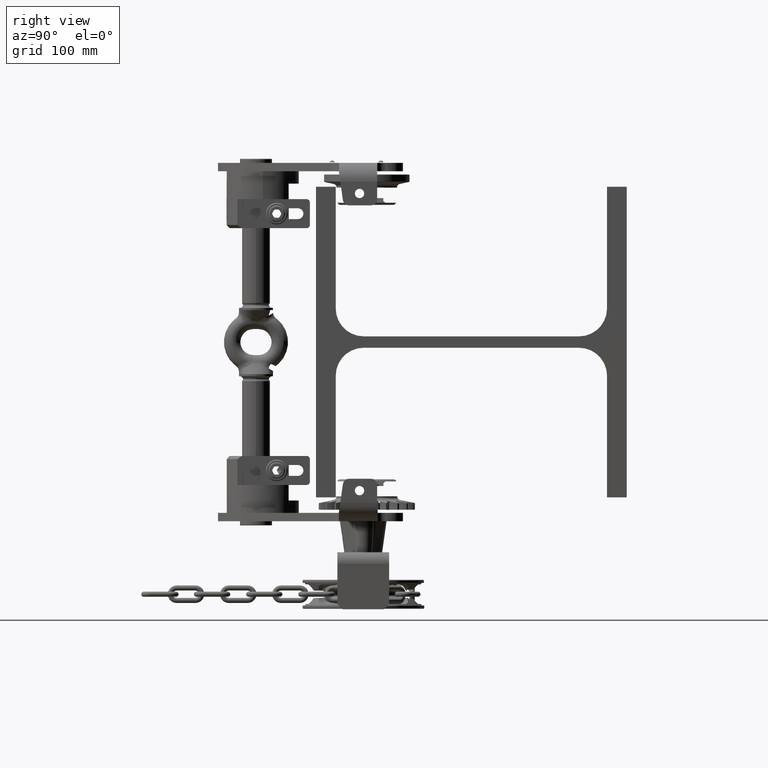
[diagram: clean part render]
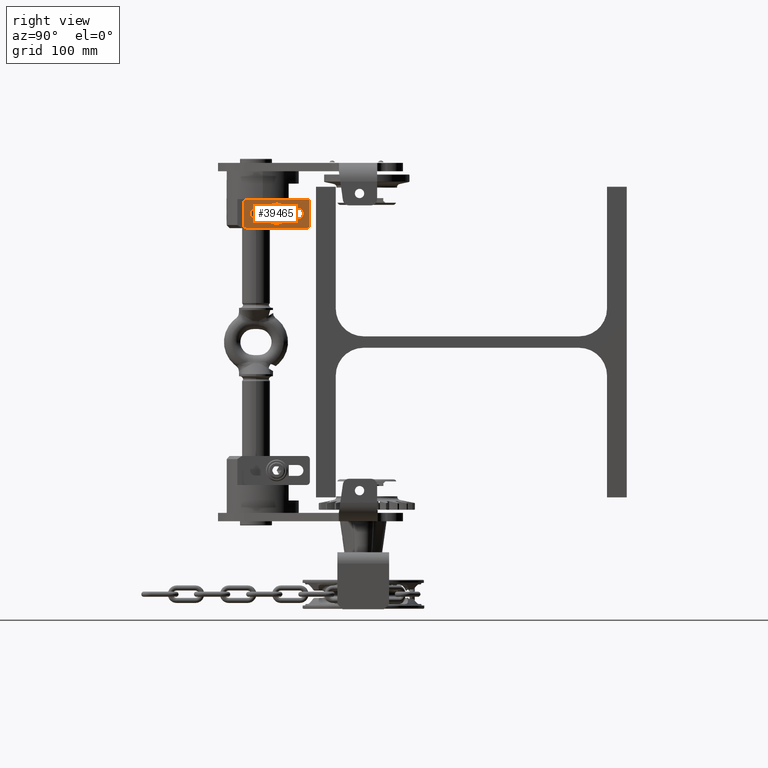
[diagram: same view with one face highlighted and labeled with its STEP entity id]
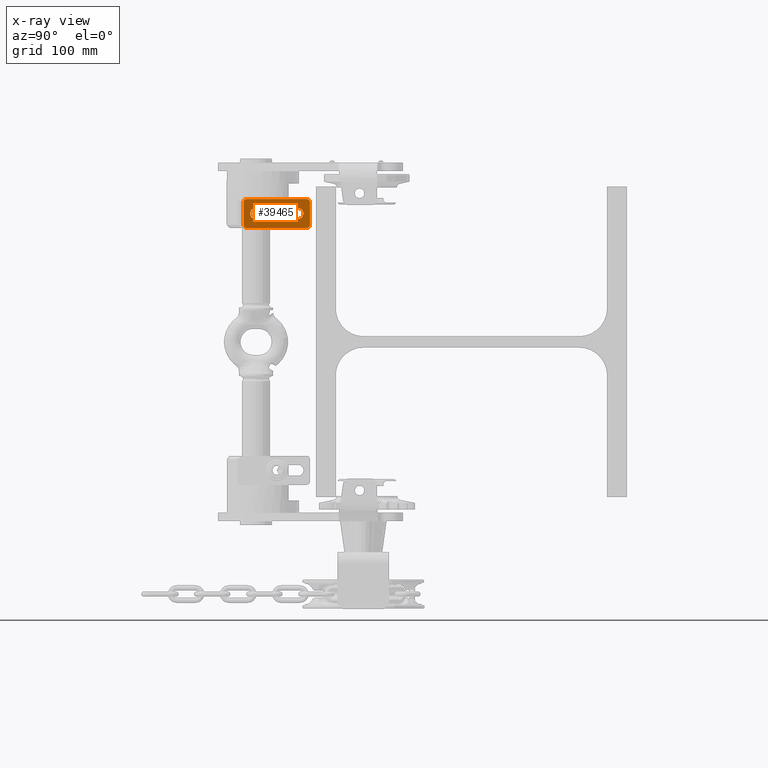
[diagram: x-ray of the same camera — body ghosted, the highlighted face saturated]
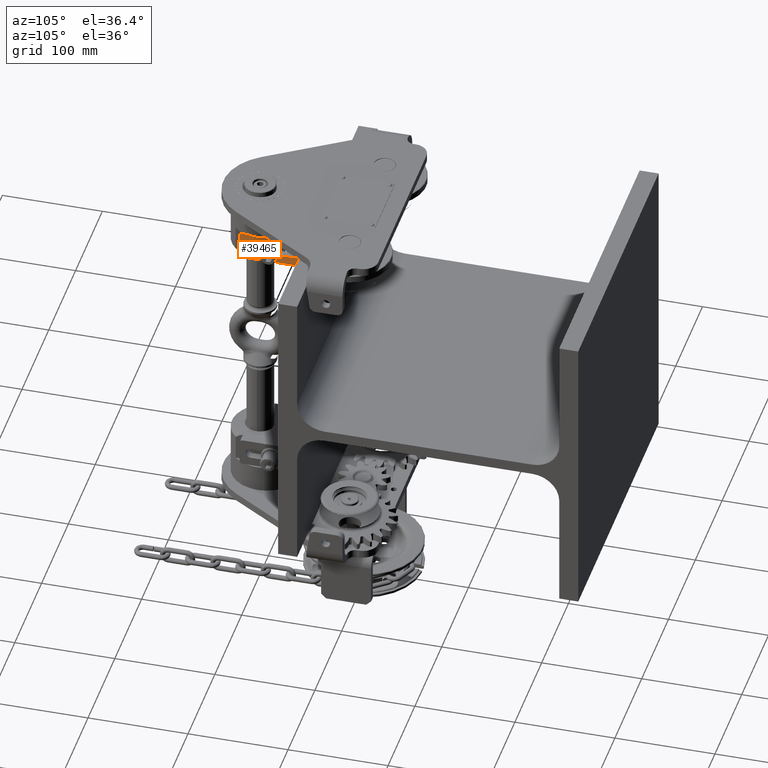
[diagram: same view with one face highlighted and labeled with its STEP entity id]
A machine part, right view. The second image highlights one B-rep face of the part: STEP entity #39465.
The next image is the same camera in x-ray: the body ghosted, the highlighted face saturated — about 0% of this face is hidden behind the body in this view.
A second angle (auxiliary view) of the same face is appended — the face is thin or edge-on in the first view.
In plain terms, the highlighted planar face has unit normal (-1, 0, -0).
Its self-contained STEP definition (entity closure, byte-faithful):
#165 = CIRCLE ( 'NONE', #2059, 3.000000000000002700 ) ;
#443 = DIRECTION ( 'NONE',  ( 0.0000000000000000000, 0.0000000000000000000, 1.000000000000000000 ) ) ;
#1272 = CARTESIAN_POINT ( 'NONE',  ( 33.00000000000000000, -219.9999999999992300, 113.0000000000003700 ) ) ;
#2029 = ORIENTED_EDGE ( 'NONE', *, *, #51077, .F. ) ;
#2059 = AXIS2_PLACEMENT_3D ( 'NONE', #48838, #49200, #443 ) ;
#2135 = EDGE_CURVE ( 'NONE', #15951, #8085, #45989, .T. ) ;
#2658 = FACE_OUTER_BOUND ( 'NONE', #48404, .T. ) ;
#2791 = DIRECTION ( 'NONE',  ( 0.0000000000000000000, 0.0000000000000000000, 1.000000000000000000 ) ) ;
#3532 = CARTESIAN_POINT ( 'NONE',  ( 33.00000000000000000, -158.9999999999988300, 138.0000000000005400 ) ) ;
#3754 = EDGE_CURVE ( 'NONE', #12403, #12668, #165, .T. ) ;
#3882 = CARTESIAN_POINT ( 'NONE',  ( 33.00000000000000000, -216.9999999999992300, 110.0000000000003600 ) ) ;
#3944 = FACE_BOUND ( 'NONE', #13076, .T. ) ;
#4210 = EDGE_CURVE ( 'NONE', #36620, #38862, #31554, .T. ) ;
#4717 = CIRCLE ( 'NONE', #30763, 2.999999999999988900 ) ;
#4914 = CARTESIAN_POINT ( 'NONE',  ( 33.00000000000000000, -216.9999999999986600, 138.0000000000002000 ) ) ;
#5660 = CARTESIAN_POINT ( 'NONE',  ( 33.00000000000001400, -167.4999999999988300, 129.2500000000005700 ) ) ;
#6125 = VERTEX_POINT ( 'NONE', #50745 ) ;
#6761 = DIRECTION ( 'NONE',  ( 0.0000000000000000000, 0.0000000000000000000, 1.000000000000000000 ) ) ;
#6789 = VECTOR ( 'NONE', #32136, 1000.000000000000000 ) ;
#6949 = CARTESIAN_POINT ( 'NONE',  ( 33.00000000000000000, -216.9999999999986600, 138.0000000000002000 ) ) ;
#7394 = LINE ( 'NONE', #52154, #6789 ) ;
#7554 = ORIENTED_EDGE ( 'NONE', *, *, #14548, .T. ) ;
#8033 = VECTOR ( 'NONE', #11930, 1000.000000000000000 ) ;
#8085 = VERTEX_POINT ( 'NONE', #26298 ) ;
#10681 = AXIS2_PLACEMENT_3D ( 'NONE', #47119, #23038, #43049 ) ;
#11930 = DIRECTION ( 'NONE',  ( 1.110223024625128300E-016, 1.000000000000000000, 1.110223024625156800E-016 ) ) ;
#12403 = VERTEX_POINT ( 'NONE', #33449 ) ;
#12668 = VERTEX_POINT ( 'NONE', #3532 ) ;
#12892 = LINE ( 'NONE', #16065, #30571 ) ;
#13076 = EDGE_LOOP ( 'NONE', ( #26924, #42802, #27984, #2029 ) ) ;
#13161 = ORIENTED_EDGE ( 'NONE', *, *, #47584, .T. ) ;
#13457 = CARTESIAN_POINT ( 'NONE',  ( 33.00000000000001400, -167.4999999999994000, 118.7500000000001000 ) ) ;
#14222 = LINE ( 'NONE', #42401, #23126 ) ;
#14548 = EDGE_CURVE ( 'NONE', #38862, #12403, #12892, .T. ) ;
#15829 = VECTOR ( 'NONE', #27295, 1000.000000000000000 ) ;
#15951 = VERTEX_POINT ( 'NONE', #13457 ) ;
#16065 = CARTESIAN_POINT ( 'NONE',  ( 33.00000000000000000, -155.9999999999988300, 135.0000000000005400 ) ) ;
#17040 = CARTESIAN_POINT ( 'NONE',  ( 33.00000000000000000, -158.9999999999994000, 113.0000000000001000 ) ) ;
#17458 = CARTESIAN_POINT ( 'NONE',  ( 33.00000000000000000, -216.9999999999992300, 110.0000000000003600 ) ) ;
#17585 = CARTESIAN_POINT ( 'NONE',  ( 32.99999999999998600, -208.4999999999992000, 124.0000000000003600 ) ) ;
#20298 = DIRECTION ( 'NONE',  ( -4.233945341710963700E-018, -1.110223024625156800E-016, 1.000000000000000000 ) ) ;
#20626 = VERTEX_POINT ( 'NONE', #1272 ) ;
#21073 = VERTEX_POINT ( 'NONE', #34832 ) ;
#21294 = CARTESIAN_POINT ( 'NONE',  ( 33.00000000000000000, -216.9999999999992300, 113.0000000000003700 ) ) ;
#21438 = EDGE_CURVE ( 'NONE', #21073, #20626, #7394, .T. ) ;
#21721 = DIRECTION ( 'NONE',  ( 1.110223024625128200E-016, 1.000000000000000000, 4.071946032390439200E-016 ) ) ;
#22238 = DIRECTION ( 'NONE',  ( -4.233945341710962900E-018, -1.110223024625156800E-016, 1.000000000000000000 ) ) ;
#22745 = DIRECTION ( 'NONE',  ( 1.000000000000000000, -1.110223024625129500E-016, 4.233945341711720200E-018 ) ) ;
#22749 = CARTESIAN_POINT ( 'NONE',  ( 33.00000000000000000, -216.9999999999992300, 113.0000000000003700 ) ) ;
#23038 = DIRECTION ( 'NONE',  ( 1.000000000000000000, -1.110223024625129500E-016, 4.233945341711720200E-018 ) ) ;
#23126 = VECTOR ( 'NONE', #21721, 1000.000000000000000 ) ;
#25370 = ORIENTED_EDGE ( 'NONE', *, *, #38996, .T. ) ;
#25425 = ORIENTED_EDGE ( 'NONE', *, *, #21438, .T. ) ;
#26298 = CARTESIAN_POINT ( 'NONE',  ( 33.00000000000001400, -167.4999999999988300, 129.2500000000005700 ) ) ;
#26924 = ORIENTED_EDGE ( 'NONE', *, *, #2135, .F. ) ;
#27229 = EDGE_CURVE ( 'NONE', #6125, #15951, #14222, .T. ) ;
#27295 = DIRECTION ( 'NONE',  ( -1.110223024625128300E-016, -1.000000000000000000, -1.110223024625156800E-016 ) ) ;
#27984 = ORIENTED_EDGE ( 'NONE', *, *, #49341, .F. ) ;
#28498 = ORIENTED_EDGE ( 'NONE', *, *, #39581, .T. ) ;
#28704 = AXIS2_PLACEMENT_3D ( 'NONE', #17585, #29559, #33408 ) ;
#29559 = DIRECTION ( 'NONE',  ( 1.000000000000000000, -1.110223024625129500E-016, 4.233945341711720200E-018 ) ) ;
#29704 = DIRECTION ( 'NONE',  ( 0.0000000000000000000, 0.0000000000000000000, 1.000000000000000000 ) ) ;
#30074 = DIRECTION ( 'NONE',  ( -1.110223024625128200E-016, -1.000000000000000000, -4.071946032390439200E-016 ) ) ;
#30571 = VECTOR ( 'NONE', #20298, 1000.000000000000000 ) ;
#30763 = AXIS2_PLACEMENT_3D ( 'NONE', #21294, #35009, #2791 ) ;
#31188 = EDGE_CURVE ( 'NONE', #49951, #21073, #42994, .T. ) ;
#31554 = CIRCLE ( 'NONE', #52144, 2.999999999999988900 ) ;
#31788 = ORIENTED_EDGE ( 'NONE', *, *, #3754, .T. ) ;
#32136 = DIRECTION ( 'NONE',  ( 4.233945341710963700E-018, 1.110223024625156800E-016, -1.000000000000000000 ) ) ;
#33143 = AXIS2_PLACEMENT_3D ( 'NONE', #22749, #34177, #22238 ) ;
#33408 = DIRECTION ( 'NONE',  ( 0.0000000000000000000, 0.0000000000000000000, -1.000000000000000000 ) ) ;
#33449 = CARTESIAN_POINT ( 'NONE',  ( 33.00000000000000000, -155.9999999999988300, 135.0000000000005400 ) ) ;
#33748 = VERTEX_POINT ( 'NONE', #17458 ) ;
#34177 = DIRECTION ( 'NONE',  ( -1.000000000000000000, 1.110223024625129500E-016, -4.233945341710950600E-018 ) ) ;
#34281 = AXIS2_PLACEMENT_3D ( 'NONE', #34878, #22745, #6761 ) ;
#34349 = PLANE ( 'NONE',  #33143 ) ;
#34464 = LINE ( 'NONE', #3882, #8033 ) ;
#34772 = VECTOR ( 'NONE', #30074, 1000.000000000000000 ) ;
#34832 = CARTESIAN_POINT ( 'NONE',  ( 33.00000000000000000, -219.9999999999986600, 135.0000000000002000 ) ) ;
#34878 = CARTESIAN_POINT ( 'NONE',  ( 33.00000000000000000, -216.9999999999986600, 135.0000000000002000 ) ) ;
#35009 = DIRECTION ( 'NONE',  ( 1.000000000000000000, -1.110223024625129500E-016, 4.233945341711720200E-018 ) ) ;
#36620 = VERTEX_POINT ( 'NONE', #45535 ) ;
#37822 = VERTEX_POINT ( 'NONE', #50330 ) ;
#37845 = DIRECTION ( 'NONE',  ( 1.000000000000000000, -1.110223024625129500E-016, 4.233945341711720200E-018 ) ) ;
#37953 = LINE ( 'NONE', #5660, #34772 ) ;
#38862 = VERTEX_POINT ( 'NONE', #45005 ) ;
#38996 = EDGE_CURVE ( 'NONE', #20626, #33748, #4717, .T. ) ;
#39465 = ADVANCED_FACE ( 'NONE', ( #2658, #3944 ), #34349, .F. ) ;
#39581 = EDGE_CURVE ( 'NONE', #12668, #49951, #39846, .T. ) ;
#39846 = LINE ( 'NONE', #6949, #15829 ) ;
#42401 = CARTESIAN_POINT ( 'NONE',  ( 33.00000000000001400, -167.4999999999994000, 118.7500000000001000 ) ) ;
#42802 = ORIENTED_EDGE ( 'NONE', *, *, #27229, .F. ) ;
#42994 = CIRCLE ( 'NONE', #34281, 3.000000000000002700 ) ;
#43033 = ORIENTED_EDGE ( 'NONE', *, *, #31188, .T. ) ;
#43049 = DIRECTION ( 'NONE',  ( 0.0000000000000000000, 0.0000000000000000000, -1.000000000000000000 ) ) ;
#45005 = CARTESIAN_POINT ( 'NONE',  ( 33.00000000000000000, -155.9999999999994000, 113.0000000000001000 ) ) ;
#45535 = CARTESIAN_POINT ( 'NONE',  ( 33.00000000000000000, -158.9999999999994000, 110.0000000000001600 ) ) ;
#45989 = CIRCLE ( 'NONE', #10681, 5.249999999999991100 ) ;
#47119 = CARTESIAN_POINT ( 'NONE',  ( 33.00000000000001400, -167.4999999999994000, 124.0000000000001100 ) ) ;
#47584 = EDGE_CURVE ( 'NONE', #33748, #36620, #34464, .T. ) ;
#48138 = ORIENTED_EDGE ( 'NONE', *, *, #4210, .T. ) ;
#48404 = EDGE_LOOP ( 'NONE', ( #25370, #13161, #48138, #7554, #31788, #28498, #43033, #25425 ) ) ;
#48838 = CARTESIAN_POINT ( 'NONE',  ( 33.00000000000000000, -158.9999999999988300, 135.0000000000005400 ) ) ;
#49200 = DIRECTION ( 'NONE',  ( 1.000000000000000000, -1.110223024625129500E-016, 4.233945341711720200E-018 ) ) ;
#49341 = EDGE_CURVE ( 'NONE', #37822, #6125, #50060, .T. ) ;
#49951 = VERTEX_POINT ( 'NONE', #4914 ) ;
#50060 = CIRCLE ( 'NONE', #28704, 5.249999999999991100 ) ;
#50330 = CARTESIAN_POINT ( 'NONE',  ( 32.99999999999998600, -208.4999999999986600, 129.2500000000002000 ) ) ;
#50745 = CARTESIAN_POINT ( 'NONE',  ( 32.99999999999998600, -208.4999999999992300, 118.7500000000003700 ) ) ;
#51077 = EDGE_CURVE ( 'NONE', #8085, #37822, #37953, .T. ) ;
#52144 = AXIS2_PLACEMENT_3D ( 'NONE', #17040, #37845, #29704 ) ;
#52154 = CARTESIAN_POINT ( 'NONE',  ( 33.00000000000000000, -219.9999999999986600, 135.0000000000002000 ) ) ;